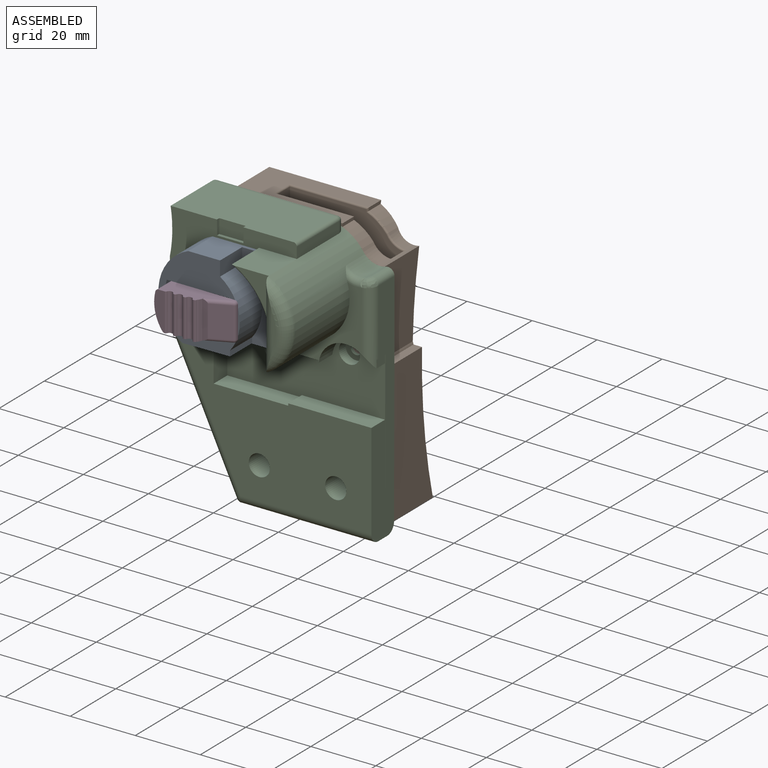
[diagram: assembled view]
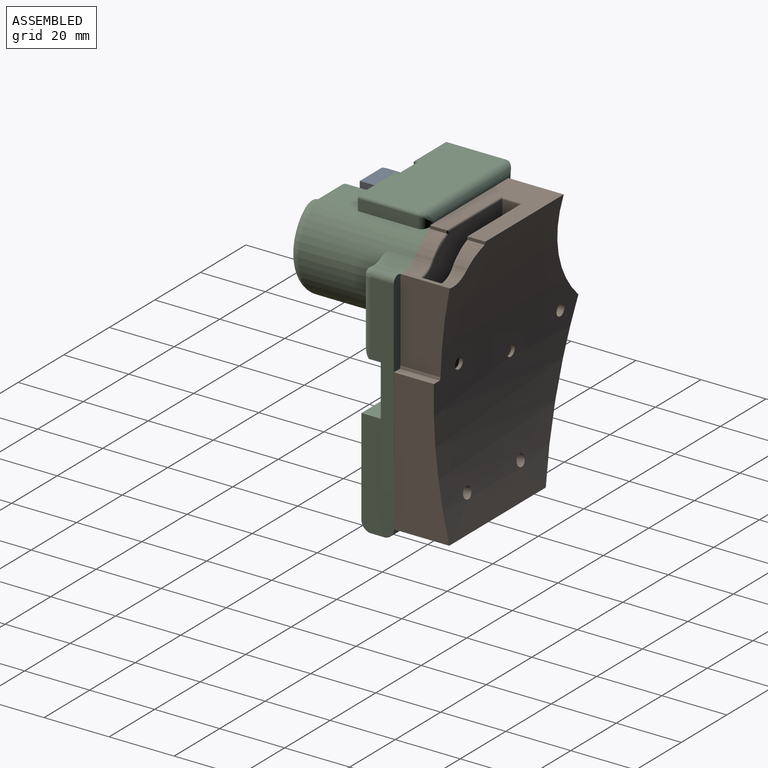
[diagram: assembled view, second angle]
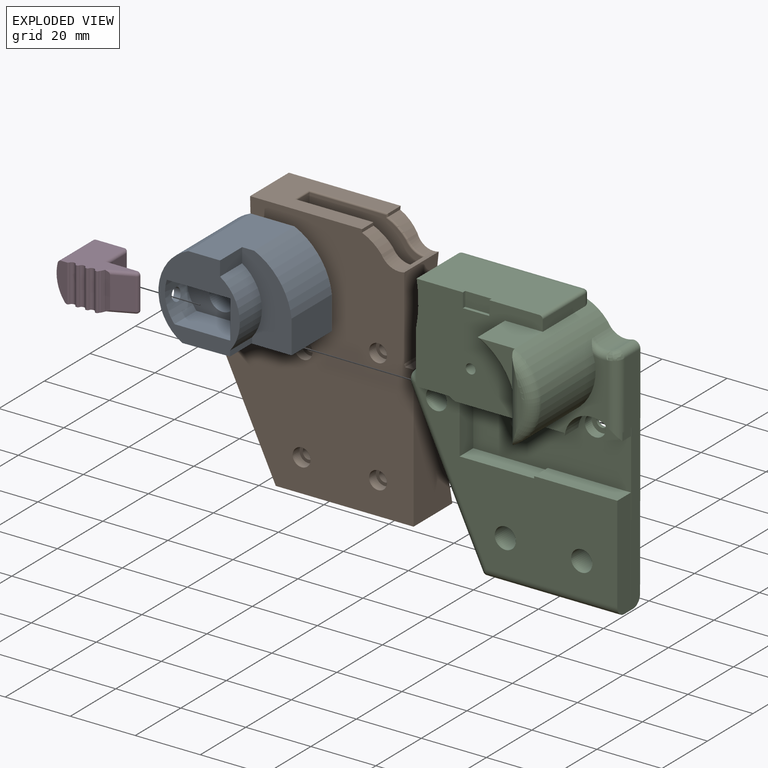
[diagram: exploded view]
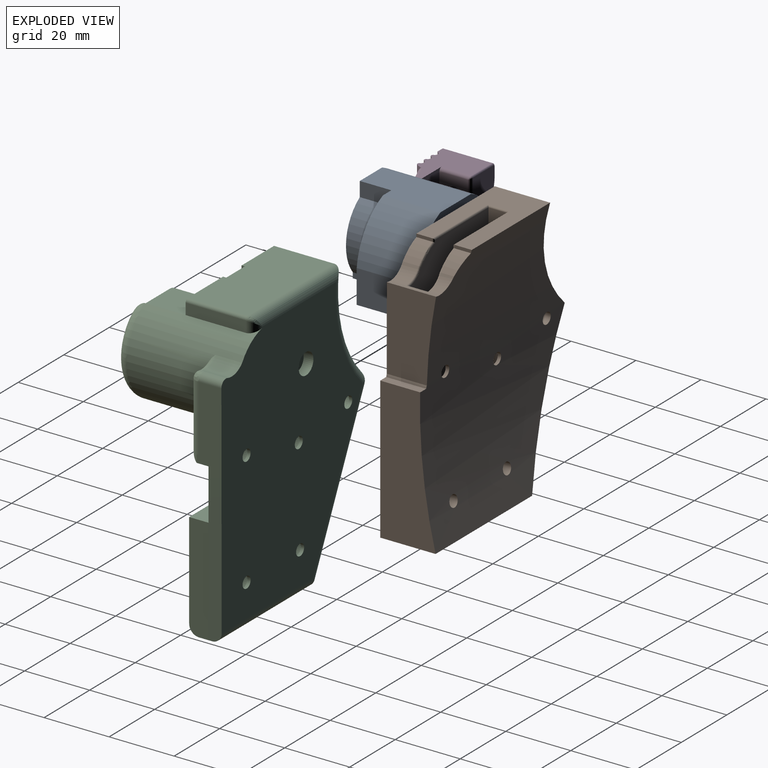
[diagram: exploded view, second angle]
ASSEMBLY  parts=4 mates=2
PART A: 23 faces, bbox 34.2x27.4x26 mm
  f0: cylinder r=14.47mm len=27.4mm, axis (0,1,0), area 880.7mm2, adj f2,f3,f6,f8,f19,f22
  f1: cylinder r=12.47mm len=11.73mm, axis (0,-1,0), area 109.5mm2, adj f2,f13,f14,f16,f22
  f2: plane 26.04x25.03mm, normal (0,-1,0), area 301.1mm2, adj f0,f1,f6,f10,f11,f12,f14,f15
  f3: plane 26.85x17.7mm, normal (0,0,-1), area 475.2mm2, adj f0,f4,f8,f9
  f4: plane 17.7x10.24mm, normal (1,0,0), area 181.3mm2, adj f3,f5,f8,f9
  f5: cylinder r=20.11mm len=17.7mm, axis (0,1,0), area 361.2mm2, adj f4,f6,f8,f9
  f6: plane 27.4x13.5mm, normal (0,0,1), area 333.8mm2, adj f0,f2,f5,f8,f9,f12
  f7: cylinder r=1.5mm len=10.2mm, axis (0,1,0), area 96.1mm2, adj f8,f18
  f8: plane 34.17x26.04mm, normal (0,1,0), area 764.9mm2, adj f0,f3,f4,f5,f6,f7
  f9: plane 26.85x26.04mm, normal (0,-1,0), area 242.9mm2, adj f3,f4,f5,f6,f10,f11,f12,f19
  f10: plane 9.7x1.67mm, normal (1,0,0), area 16.2mm2, adj f2,f9,f11,f19
  f11: cylinder r=13.45mm len=19.73mm, axis (0,-1,0), area 218.3mm2, adj f2,f9,f10,f12
  f12: plane 9.7x4.49mm, normal (1,0,0), area 43.5mm2, adj f2,f6,f9,f11
  f13: plane 20.11x11.73mm, normal (0,-1,0), area 177.6mm2, adj f1,f14,f15,f16,f17
  f14: plane 19.54x9.7mm, normal (0,0,-1), area 189.5mm2, adj f1,f2,f13,f15
  f15: plane 11.73x9.7mm, normal (-1,0,0), area 102.4mm2, adj f2,f13,f14,f16,f21
  f16: plane 17.21x9.7mm, normal (0,0,1), area 166.9mm2, adj f1,f2,f13,f15
  f17: cylinder r=4mm len=8mm, axis (0,-1,0), area 188.5mm2, adj f13,f18
  f18: plane 8x8mm, normal (0,-1,0), area 43.2mm2, adj f7,f17
  f19: plane 14.7x9.7mm, normal (0.01,0,-1), area 142.6mm2, adj f0,f2,f9,f10
  f20: plane 3.8x3.8mm, normal (-1,0,0), area 11.3mm2, adj f21
  f21: cylinder r=1.9mm len=3.8mm, axis (-1,0,0), area 19.3mm2, adj f15,f20
  f22: cylinder r=1.9mm len=3.8mm, axis (-1,0,0), area 24.3mm2, adj f0,f1
PART B: 48 faces, bbox 63.5x17x78.8 mm
  f0: plane 5.5x5.5mm, normal (0,-1,0), area 14.1mm2, adj f24,f46
  f1: plane 5.5x5.5mm, normal (0,-1,0), area 14.1mm2, adj f23,f45
  f2: plane 5.5x5.5mm, normal (0,-1,0), area 14.1mm2, adj f22,f44
  f3: plane 5.5x5.5mm, normal (0,-1,0), area 14.1mm2, adj f21,f43
  f4: plane 5.7x5.7mm, normal (0,-1,0), area 15.9mm2, adj f25,f42
  f5: cylinder r=14.84mm len=6mm, axis (0,-1,0), area 35.1mm2, adj f6,f11,f17,f35
  f6: plane 5.33x0.96mm, normal (1,0,0), area 5mm2, adj f5,f11,f12,f37
  f7: cylinder r=1.75mm len=3.5mm, axis (0,-1,0), area 11.3mm2, adj f11,f30
  f8: cylinder r=1.75mm len=4mm, axis (0,-1,0), area 40.4mm2, adj f11,f30
  f9: cylinder r=1.75mm len=4.01mm, axis (0,-1,0), area 40.5mm2, adj f11,f30
  f10: cylinder r=1.75mm len=3.5mm, axis (0,-1,0), area 12.6mm2, adj f11,f30
  f11: cylinder r=162.68mm len=78.47mm, axis (-1,0,0), area 4000.3mm2, adj f5,f6,f7,f8,f9,f10,f12,f13
  f12: plane 34.43x17.03mm, normal (0,0,1), area 419.7mm2, adj f6,f11,f20,f27,f39,f40,f41,f47
  f13: plane 43.66x17.03mm, normal (1,0,0), area 596.4mm2, adj f11,f14,f19,f47
  f14: plane 42.4x17.03mm, normal (0,0,-1), area 519.1mm2, adj f11,f13,f26,f28,f29,f30,f31,f47
  f15: cylinder r=5.39mm len=12.31mm, axis (0,-1,0), area 10.4mm2, adj f11,f16,f19,f47
  f16: plane 25.45x15.15mm, normal (1,0,0), area 340.8mm2, adj f11,f15,f17,f47
  f17: cylinder r=6.16mm len=15.78mm, axis (0,-1,0), area 80.6mm2, adj f5,f11,f16,f18,f32,f33,f34,f47
  f18: cylinder r=14.84mm len=6mm, axis (0,-1,0), area 37.1mm2, adj f17,f20,f36,f47
  f19: plane 12.29x2.63mm, normal (0,0,1), area 32.3mm2, adj f11,f13,f15,f47
  f20: plane 4.9x0.96mm, normal (1,0,0), area 4.7mm2, adj f12,f18,f38,f47
  f21: cylinder r=1.75mm len=3.5mm, axis (0,-1,0), area 26.4mm2, adj f3,f31
  f22: cylinder r=1.75mm len=3.5mm, axis (0,-1,0), area 26.4mm2, adj f2,f31
  f23: cylinder r=1.75mm len=3.5mm, axis (0,-1,0), area 26.4mm2, adj f1,f31
  f24: cylinder r=1.75mm len=3.5mm, axis (0,-1,0), area 26.4mm2, adj f0,f31
  f25: cylinder r=1.75mm len=9.32mm, axis (0,-1,0), area 102mm2, adj f4,f11
  f26: plane 44.37x21.08mm, normal (-0.9,0,-0.43), area 669.9mm2, adj f11,f14,f27,f47
  f27: cylinder r=42.08mm len=34.1mm, axis (0,-1,0), area 526.8mm2, adj f11,f12,f26,f47
  f28: plane 77.97x5.8mm, normal (1,0,0), area 452.2mm2, adj f14,f30,f31,f41
  f29: plane 69.22x5.8mm, normal (-1,0,0), area 401.5mm2, adj f14,f30,f31,f32
  f30: plane 77.97x35mm, normal (0,-1,0), area 2633.2mm2, adj f7,f8,f9,f10,f14,f28,f29,f32
  f31: plane 77.97x35mm, normal (0,1,0), area 2633.2mm2, adj f14,f21,f22,f23,f24,f28,f29,f32
  f32: cylinder r=0.5mm len=6.8mm, axis (0,-1,0), area 4.8mm2, adj f17,f29,f30,f31,f33,f34
  f33: torus R=6.66mm, axis (0,1,0), area 5.2mm2, adj f17,f30,f32,f35
  f34: torus R=6.66mm, axis (0,-1,0), area 5.2mm2, adj f17,f31,f32,f36
  f35: torus R=14.34mm, axis (0,1,0), area 5.9mm2, adj f5,f30,f33,f37
  f36: torus R=14.34mm, axis (0,-1,0), area 5.9mm2, adj f18,f31,f34,f38
  f37: cylinder r=0.5mm len=1.3mm, axis (0,0,-1), area 0.7mm2, adj f6,f30,f35,f39
  f38: cylinder r=0.5mm len=1.3mm, axis (0,0,1), area 0.7mm2, adj f20,f31,f36,f40
  f39: cylinder r=0.5mm len=24.5mm, axis (1,0,0), area 18.8mm2, adj f12,f30,f37,f41
  f40: cylinder r=0.5mm len=24.5mm, axis (-1,0,0), area 18.8mm2, adj f12,f31,f38,f41
  f41: cylinder r=0.5mm len=6.8mm, axis (0,1,0), area 4.8mm2, adj f12,f28,f39,f40
  f42: cylinder r=2.85mm len=5.7mm, axis (0,1,0), area 53.7mm2, adj f4,f47
  f43: cylinder r=2.75mm len=5.5mm, axis (0,1,0), area 51.8mm2, adj f3,f47
  f44: cylinder r=2.75mm len=5.5mm, axis (0,1,0), area 51.8mm2, adj f2,f47
  f45: cylinder r=2.75mm len=5.5mm, axis (0,1,0), area 51.8mm2, adj f1,f47
  f46: cylinder r=2.75mm len=5.5mm, axis (0,1,0), area 51.8mm2, adj f0,f47
  f47: plane 78.47x63.48mm, normal (0,-1,0), area 3892.6mm2, adj f12,f13,f14,f15,f16,f17,f18,f19
PART C: 87 faces, bbox 65.9x38.1x86.7 mm
  f0: plane 10x1.17mm, normal (0,-1,0), area 7.8mm2, adj f79,f80
  f1: cylinder r=39.08mm len=33.53mm, axis (0,1,0), area 353.6mm2, adj f2,f25,f38,f61,f63,f65,f69,f70
  f2: plane 37.82x18.5mm, normal (0,0,1), area 691.5mm2, adj f1,f4,f22,f23,f24,f25,f66
  f3: plane 18.5x3.41mm, normal (1,0,0), area 63.1mm2, adj f4,f11,f25,f68
  f4: cylinder r=1mm len=18.5mm, axis (0,1,0), area 29.1mm2, adj f2,f3,f25,f67
  f5: plane 68.28x61.97mm, normal (0,-1,0), area 1835.1mm2, adj f29,f30,f31,f32,f33,f34,f35,f36
  f6: plane 46.99x22.32mm, normal (-0.9,0,-0.43), area 208.1mm2, adj f7,f57,f60,f63
  f7: cylinder r=1mm len=4mm, axis (0,1,0), area 4.5mm2, adj f6,f10,f56,f59
  f8: cylinder r=6.16mm len=8mm, axis (0,1,0), area 41.4mm2, adj f9,f11,f20,f74
  f9: cylinder r=6.16mm len=8mm, axis (0,1,0), area 12.4mm2, adj f8,f12,f20,f76,f78
  f10: plane 41.45x4mm, normal (0,0,-1), area 165.8mm2, adj f7,f18,f29,f55,f58
  f11: cylinder r=14.28mm len=33.8mm, axis (0,1,0), area 273.2mm2, adj f3,f8,f20,f21,f42,f68,f81
  f12: cylinder r=6.23mm len=7.86mm, axis (0,1,0), area 2.9mm2, adj f9,f20,f75,f77
  f13: cylinder r=1.75mm len=3.5mm, axis (0,1,0), area 11mm2, adj f20,f54
  f14: cylinder r=1.75mm len=3.5mm, axis (0,1,0), area 11mm2, adj f20,f52
  f15: cylinder r=1.75mm len=3.5mm, axis (0,1,0), area 11mm2, adj f20,f46
  f16: cylinder r=1.75mm len=3.5mm, axis (0,1,0), area 11mm2, adj f20,f48
  f17: cylinder r=3.25mm len=6.5mm, axis (0,1,0), area 61.3mm2, adj f20,f82
  f18: plane 71.12x7mm, normal (1,0,0), area 343.7mm2, adj f10,f20,f26,f28,f58,f73,f75
  f19: cylinder r=1.75mm len=3.5mm, axis (0,1,0), area 11mm2, adj f20,f50
  f20: plane 78.47x62.09mm, normal (0,1,0), area 3910.4mm2, adj f8,f9,f11,f12,f13,f14,f15,f16
  f21: plane 12.54x11.84mm, normal (0,0,1), area 142.5mm2, adj f11,f25,f39,f71,f72
  f22: plane 8.11x4.41mm, normal (0,-1,0), area 35.8mm2, adj f2,f23,f24,f84
  f23: plane 4.41x1mm, normal (1,0,0), area 4.4mm2, adj f2,f22,f25,f84
  f24: plane 4.41x1mm, normal (-1,0,0), area 4.4mm2, adj f2,f22,f25,f84
  f25: plane 39.11x31mm, normal (0,-1,0), area 1089.3mm2, adj f1,f2,f3,f4,f21,f23,f24,f39
  f26: plane 53.86x48.6mm, normal (0,-1,0), area 735.2mm2, adj f18,f27,f28,f29,f30,f31,f32,f33
  f27: plane 3.72x2.42mm, normal (1,0,0), area 8.9mm2, adj f26,f28,f36,f73
  f28: plane 3.71x0.08mm, normal (0,0,-1), area 0.3mm2, adj f18,f26,f27,f73
  f29: plane 32.66x6mm, normal (1,0,0), area 194.1mm2, adj f5,f10,f26,f30,f55
  f30: plane 25.57x6mm, normal (0,0,1), area 153.4mm2, adj f5,f26,f29,f31
  f31: plane 6x0.65mm, normal (-1,0,0), area 3.9mm2, adj f5,f26,f30,f32
  f32: plane 22.94x6mm, normal (0,0,1), area 137.7mm2, adj f5,f26,f31,f33
  f33: plane 15.12x6mm, normal (1,0,0), area 90.7mm2, adj f5,f26,f32,f34
  f34: plane 22.94x6mm, normal (0,0,-1), area 137.7mm2, adj f5,f26,f33,f35
  f35: plane 9.36x6mm, normal (0,0,-1), area 56.2mm2, adj f5,f26,f34,f37
  f36: cylinder r=8.39mm len=16.21mm, axis (0,-1,0), area 128.8mm2, adj f5,f26,f27,f37,f73
  f37: plane 6x0.67mm, normal (-1,0,0), area 4mm2, adj f5,f26,f35,f36
  f38: cylinder r=39.2mm len=12.93mm, axis (0,-1,0), area 2mm2, adj f1,f61,f69
  f39: cylinder r=20.99mm len=15.83mm, axis (0,-1,0), area 241.3mm2, adj f21,f25,f40,f72
  f40: plane 13.45x12.53mm, normal (-1,0,0), area 132.2mm2, adj f25,f39,f41,f72,f80
  f41: cylinder r=14.88mm len=25.58mm, axis (0,-1,0), area 593.5mm2, adj f5,f40,f42,f74,f79,f85
  f42: plane 29.56x3.13mm, normal (0.4,0,-0.92), area 0.4mm2, adj f11,f41,f74,f79,f80,f81
  f43: plane 11.5x10.25mm, normal (0,0,-1), area 117.9mm2, adj f5,f25,f44,f86
  f44: plane 16.76x14.98mm, normal (-1,0,0), area 191.5mm2, adj f5,f25,f43,f61,f70
  f45: cylinder r=3.25mm len=6.5mm, axis (0,-1,0), area 61.3mm2, adj f26,f46
  f46: plane 6.5x6.5mm, normal (0,-1,0), area 23.6mm2, adj f15,f45
  f47: cylinder r=3.25mm len=6.5mm, axis (0,-1,0), area 61.3mm2, adj f26,f48
  f48: plane 6.5x6.5mm, normal (0,-1,0), area 23.6mm2, adj f16,f47
  f49: cylinder r=3.25mm len=9mm, axis (0,-1,0), area 183.8mm2, adj f5,f50
  f50: plane 6.5x6.5mm, normal (0,-1,0), area 23.6mm2, adj f19,f49
  f51: cylinder r=3.25mm len=9mm, axis (0,-1,0), area 183.8mm2, adj f5,f52
  f52: plane 6.5x6.5mm, normal (0,-1,0), area 23.6mm2, adj f14,f51
  f53: cylinder r=3.25mm len=9mm, axis (0,-1,0), area 183.8mm2, adj f5,f54
  f54: plane 6.5x6.5mm, normal (0,-1,0), area 23.6mm2, adj f13,f53
  f55: cylinder r=3mm len=41.45mm, axis (-1,0,0), area 192.4mm2, adj f5,f10,f29,f56
  f56: bspline ~3.11x3mm, area 2.2mm2, adj f7,f55,f57
  f57: cylinder r=3mm len=48.28mm, axis (0.43,0,-0.9), area 242.2mm2, adj f5,f6,f56,f62
  f58: cylinder r=3mm len=41.46mm, axis (-1,0,0), area 192.4mm2, adj f10,f18,f20,f59
  f59: bspline ~3.44x3mm, area 2.2mm2, adj f7,f58,f60
  f60: cylinder r=3mm len=48.28mm, axis (-0.43,0,0.9), area 242.2mm2, adj f6,f20,f59,f64
  f61: torus R=42.08mm, axis (0,1,0), area 85.6mm2, adj f1,f5,f38,f44,f62
  f62: sphere r=3mm, area 10.9mm2, adj f57,f61,f63
  f63: cylinder r=3mm len=4mm, axis (0,1,0), area 14.5mm2, adj f1,f6,f62,f64
  f64: sphere r=3mm, area 11.6mm2, adj f60,f63,f65
  f65: torus R=42.08mm, axis (0,1,0), area 168.4mm2, adj f1,f20,f64,f66
  f66: cylinder r=3mm len=37.82mm, axis (1,0,0), area 165.5mm2, adj f2,f20,f65,f67
  f67: bspline ~3.52x3mm, area 3.2mm2, adj f4,f66,f68
  f68: cylinder r=3mm len=3.41mm, axis (0,0,-1), area 10.1mm2, adj f3,f11,f20,f67
  f69: plane 12.94x5.09mm, normal (0,-1,0), area 0.1mm2, adj f1,f38,f70
  f70: plane 14.22x0.01mm, normal (-0.71,0,-0.7), area 0.2mm2, adj f1,f25,f44,f69
  f71: plane 13.34x10.53mm, normal (0,-1,0), area 50mm2, adj f21,f72,f80
  f72: torus R=21.49mm, axis (0,1,0), area 14.9mm2, adj f21,f39,f40,f71
  f73: cylinder r=3mm len=22.79mm, axis (0,0,-1), area 97.3mm2, adj f5,f18,f27,f28,f36,f77,f78
  f74: torus R=8.16mm, axis (0,1,0), area 12.8mm2, adj f5,f8,f41,f42,f76
  f75: cylinder r=2mm len=7mm, axis (0,1,0), area 26.4mm2, adj f12,f18,f20,f77
  f76: torus R=8.16mm, axis (0,1,0), area 4.1mm2, adj f5,f9,f74
  f77: bspline ~3.6x3.07mm, area 9mm2, adj f12,f73,f75,f78
  f78: bspline ~2.69x2.48mm, area 2mm2, adj f9,f73,f77
  f79: torus R=11.38mm, axis (0,-1,0), area 113mm2, adj f0,f41,f42,f80
  f80: cylinder r=3.5mm len=26.56mm, axis (0,0,-1), area 118.4mm2, adj f0,f40,f42,f71,f79,f81
  f81: torus R=10.78mm, axis (0,-1,0), area 26.4mm2, adj f11,f42,f80
  f82: plane 6.5x6.5mm, normal (0,1,0), area 26.1mm2, adj f17,f83
  f83: cylinder r=1.5mm len=18.5mm, axis (0,-1,0), area 174.4mm2, adj f25,f82
  f84: plane 8.11x1mm, normal (0,0,1), area 8.1mm2, adj f22,f23,f24,f25
  f85: plane 27.08x11.5mm, normal (0,0,-1), area 311.4mm2, adj f5,f25,f41,f86
  f86: cylinder r=14.14mm len=11.5mm, axis (0,1,0), area 23.4mm2, adj f5,f25,f43,f85
PART D: 77 faces, bbox 21.8x16.1x11.9 mm
  f0: plane 10.62x9.08mm, normal (0,1,0), area 90.1mm2, adj f3,f6,f54,f55,f64,f65,f66,f70
  f1: plane 11.62x3.23mm, normal (0,-1,0), area 29.6mm2, adj f2,f42,f43,f47,f48,f49,f50,f51
  f2: plane 14.7x0.1mm, normal (-1,0,0), area 1.4mm2, adj f1,f3,f57,f60,f61
  f3: cylinder r=1mm len=3.35mm, axis (0,0,1), area 3mm2, adj f0,f2,f55,f56,f61,f62,f63,f64
  f4: cylinder r=2mm len=10.37mm, axis (1,0,0), area 130.3mm2, adj f7,f47
  f5: plane 17.36x15.21mm, normal (0,0,-1), area 133.1mm2, adj f8,f14,f15,f16,f17,f18,f19,f20
  f6: cylinder r=1mm len=10.62mm, axis (0,0,1), area 14.5mm2, adj f0,f67,f68,f69
  f7: plane 9.62x8.77mm, normal (1,0,0), area 71.8mm2, adj f4,f8,f58,f59,f68
  f8: plane 11.62x11.5mm, normal (0,1,0), area 122mm2, adj f5,f7,f9,f43,f46,f58,f59,f76
  f9: plane 9.62x0.36mm, normal (1,0,0), area 3.5mm2, adj f8,f10,f46,f76
  f10: cylinder r=1mm len=9.62mm, axis (0,0,1), area 11mm2, adj f9,f11,f45,f75
  f11: plane 9.62x5.93mm, normal (0.42,-0.91,0), area 62.8mm2, adj f10,f12,f44,f74
  f12: plane 11.25x1mm, normal (0,-1,0), area 10.8mm2, adj f11,f13,f44,f74
  f13: plane 11.49x0.51mm, normal (0,-1,0), area 5.7mm2, adj f12,f14,f44,f74
  f14: plane 11.62x0.49mm, normal (1,0,0), area 0.9mm2, adj f5,f13,f15,f43,f44,f74
  f15: plane 11.62x1.12mm, normal (0.91,-0.42,0), area 14.3mm2, adj f5,f14,f16,f43
  f16: cylinder r=1mm len=11.62mm, axis (0,0,1), area 6.9mm2, adj f5,f15,f17,f43
  f17: cylinder r=0.5mm len=11.62mm, axis (0,0,1), area 7.1mm2, adj f5,f16,f18,f43
  f18: plane 11.62x0.17mm, normal (0,-1,0), area 2mm2, adj f5,f17,f19,f43
  f19: cylinder r=0.5mm len=11.62mm, axis (0,0,1), area 6.4mm2, adj f5,f18,f20,f43
  f20: plane 11.62x0.06mm, normal (-0.92,-0.4,0), area 0.8mm2, adj f5,f19,f21,f43
  f21: cylinder r=1mm len=11.62mm, axis (0,0,1), area 7.5mm2, adj f5,f20,f22,f43
  f22: cylinder r=1mm len=11.62mm, axis (0,0,1), area 6.2mm2, adj f5,f21,f23,f43
  f23: cylinder r=1mm len=11.62mm, axis (0,0,1), area 3.7mm2, adj f5,f22,f24,f43
  f24: cylinder r=1mm len=11.62mm, axis (0,0,1), area 9.9mm2, adj f5,f23,f25,f43
  f25: plane 11.62x0.1mm, normal (0.92,-0.38,0), area 1.2mm2, adj f5,f24,f26,f43
  f26: plane 11.62x0.06mm, normal (0.92,-0.4,0), area 0.8mm2, adj f5,f25,f27,f43
  f27: cylinder r=0.5mm len=11.62mm, axis (0,0,1), area 6.4mm2, adj f5,f26,f28,f43
  f28: plane 11.62x0.17mm, normal (0,-1,0), area 2mm2, adj f5,f27,f29,f43
  f29: cylinder r=0.5mm len=11.62mm, axis (0,0,1), area 6.4mm2, adj f5,f28,f30,f43
  f30: plane 11.62x0.06mm, normal (-0.92,-0.4,0), area 0.8mm2, adj f5,f29,f31,f43
  f31: plane 11.62x0.1mm, normal (-0.92,-0.38,0), area 1.2mm2, adj f5,f30,f32,f43
  f32: cylinder r=1mm len=11.62mm, axis (0,0,1), area 9.9mm2, adj f5,f31,f33,f43
  f33: cylinder r=1mm len=11.62mm, axis (0,0,1), area 12.4mm2, adj f5,f32,f34,f43
  f34: cylinder r=1mm len=11.62mm, axis (0,0,1), area 5mm2, adj f5,f33,f35,f43
  f35: plane 11.62x0.06mm, normal (0.92,-0.4,0), area 0.8mm2, adj f5,f34,f36,f43
  f36: cylinder r=0.5mm len=11.62mm, axis (0,0,1), area 6.4mm2, adj f5,f35,f37,f43
  f37: plane 11.62x0.17mm, normal (0,-1,0), area 2mm2, adj f5,f36,f38,f43
  f38: cylinder r=0.5mm len=11.62mm, axis (0,0,1), area 6.4mm2, adj f5,f37,f39,f43
  f39: plane 11.62x0.06mm, normal (-0.92,-0.4,0), area 0.8mm2, adj f5,f38,f40,f43
  f40: cylinder r=1mm len=11.62mm, axis (0,0,1), area 3.7mm2, adj f5,f39,f41,f43
  f41: cylinder r=1mm len=11.62mm, axis (0,0,1), area 24.9mm2, adj f5,f40,f42,f43
  f42: cylinder r=0.5mm len=11.62mm, axis (0,0,1), area 7.1mm2, adj f1,f5,f41,f43
  f43: plane 19.26x15.2mm, normal (0,0,1), area 162mm2, adj f1,f8,f14,f15,f16,f17,f18,f19
  f44: cylinder r=1mm len=7.59mm, axis (-0.91,-0.42,0), area 11.3mm2, adj f11,f12,f13,f14,f43,f45
  f45: sphere r=1mm, area 1.2mm2, adj f10,f44,f46
  f46: cylinder r=1mm len=1mm, axis (0,-1,0), area 0.6mm2, adj f8,f9,f43,f45
  f47: cylinder r=12.47mm len=14.7mm, axis (0,-1,0), area 59.8mm2, adj f1,f4,f48,f55,f56,f57
  f48: cylinder r=12.46mm len=14.7mm, axis (0,-1,0), area 39.1mm2, adj f1,f47,f49,f54
  f49: plane 14.75x0.31mm, normal (-0.81,0,-0.59), area 5.6mm2, adj f1,f48,f50,f54
  f50: cylinder r=1mm len=15.07mm, axis (0,-1,0), area 12.7mm2, adj f1,f5,f49,f72,f73
  f51: cylinder r=1mm len=15.19mm, axis (0,-1,0), area 4.7mm2, adj f1,f52,f53,f62
  f52: cylinder r=12.47mm len=15.17mm, axis (0,-1,0), area 44mm2, adj f1,f51,f60,f61
  f53: cylinder r=1mm len=15.2mm, axis (0,-1,0), area 15.6mm2, adj f1,f43,f51,f63,f64
  f54: torus R=11.46mm, axis (0,1,0), area 5.2mm2, adj f0,f48,f49,f55,f72,f73
  f55: torus R=11.47mm, axis (0,1,0), area 7.2mm2, adj f0,f3,f47,f54,f56
  f56: bspline ~1.44x1.43mm, area 0.2mm2, adj f3,f47,f55
  f57: cylinder r=1mm len=14.7mm, axis (0,-1,0), area 0.1mm2, adj f1,f2,f47
  f58: cylinder r=1mm len=9.2mm, axis (0,1,0), area 14.2mm2, adj f5,f7,f8,f69,f70
  f59: cylinder r=1mm len=9.2mm, axis (0,-1,0), area 14.2mm2, adj f7,f8,f43,f66,f67
  f60: cylinder r=0.5mm len=14.7mm, axis (0,-1,0), area 0mm2, adj f1,f2,f52,f61
  f61: bspline ~3.59x1.04mm, area 0.9mm2, adj f2,f3,f52,f60,f62
  f62: bspline ~0.55x0.52mm, area 0.2mm2, adj f3,f51,f61,f63
  f63: bspline ~0.72x0.66mm, area 0.2mm2, adj f3,f53,f62,f64
  f64: torus R=0.5mm, axis (0,1,0), area 0.5mm2, adj f0,f3,f53,f63,f65
  f65: cylinder r=0.5mm len=8.75mm, axis (1,0,0), area 6.9mm2, adj f0,f43,f64,f66
  f66: bspline ~0.51x0.5mm, area 0mm2, adj f0,f59,f65,f67
  f67: bspline ~1.25x1.02mm, area 0.8mm2, adj f6,f59,f66,f68
  f68: cylinder r=0.5mm len=9.62mm, axis (0,0,1), area 0.7mm2, adj f6,f7,f67,f69
  f69: bspline ~1.18x1.03mm, area 0.8mm2, adj f6,f58,f68,f70
  f70: bspline ~0.51x0.5mm, area 0mm2, adj f0,f58,f69,f71
  f71: cylinder r=0.5mm len=6.38mm, axis (-1,0,0), area 5mm2, adj f0,f5,f70,f72
  f72: bspline ~1.01x0.75mm, area 0.4mm2, adj f5,f50,f54,f71,f73
  f73: bspline ~0.84x0.81mm, area 0.2mm2, adj f50,f54,f72
  f74: cylinder r=1mm len=7.59mm, axis (0.91,0.42,0), area 11.3mm2, adj f5,f11,f12,f13,f14,f75
  f75: sphere r=1mm, area 1.2mm2, adj f10,f74,f76
  f76: cylinder r=1mm len=1mm, axis (0,1,0), area 0.6mm2, adj f5,f8,f9,f75
PLACE A t=(49.99,80.66,-23.84)mm
PLACE B t=(51.08,35.96,-23.7)mm
PLACE C t=(51.08,42.96,-23.7)mm fixed
PLACE D rot(axis=(0,0.55,-0.83),0deg) t=(42.27,105.65,-23.84)mm
MATE fastened C.f14 <-> B.f42  axis (0,1,0) through (10.33,53.76,3.85)mm
MATE slider D.f4 <-> A.f21  axis (1,0,0) through (29.99,26.21,21.6)mm
